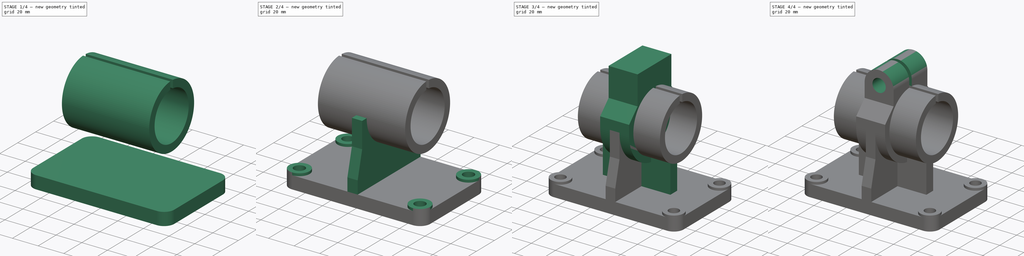
[diagram: build sequence overview — one tinted view per stage of 4, left to right]
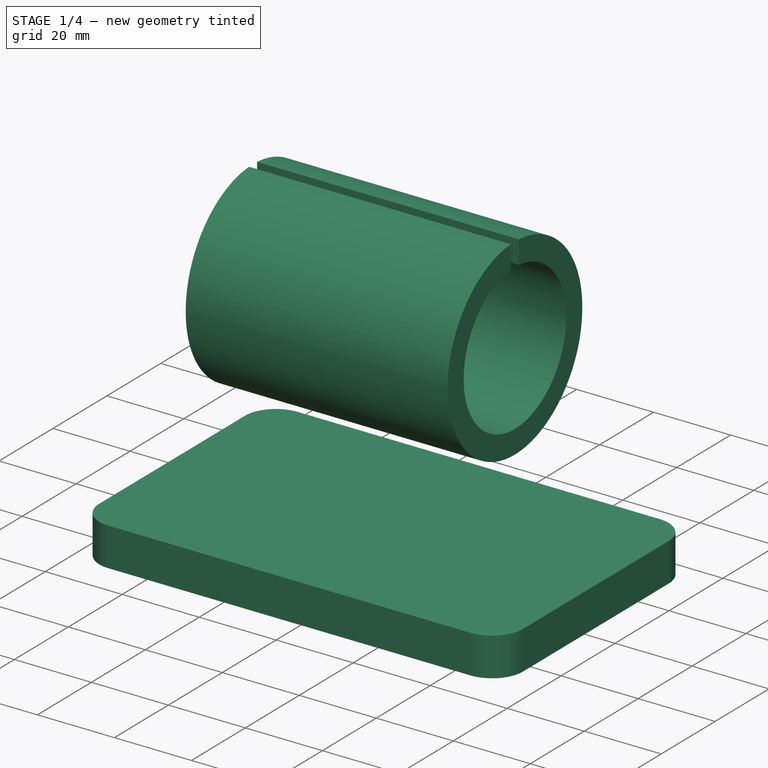
[diagram: stage 1 of 4 — iso view after this stage's code; geometry added in this stage tinted green]
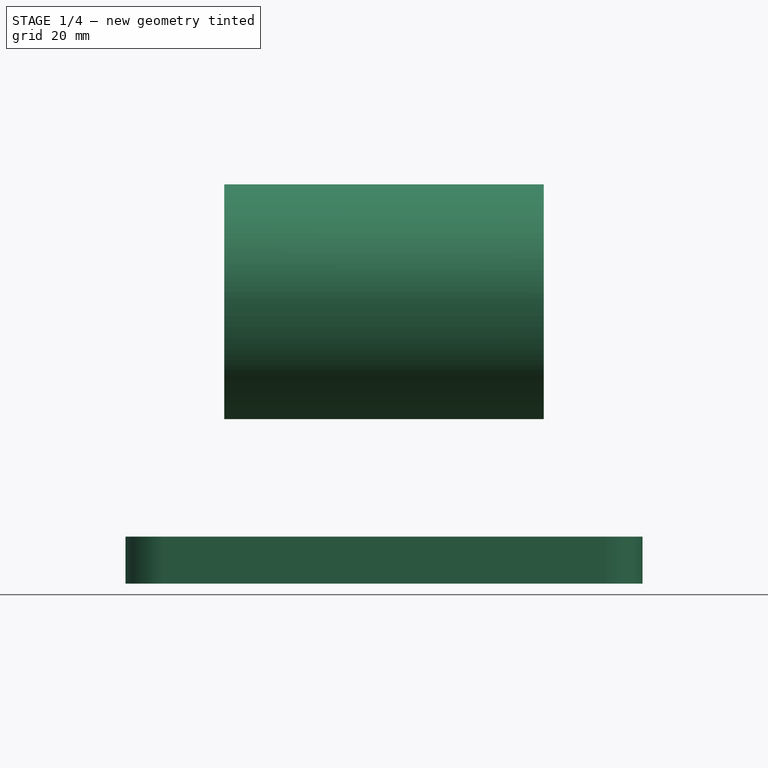
[diagram: stage 1 of 4 — front view after this stage's code; geometry added in this stage tinted green]
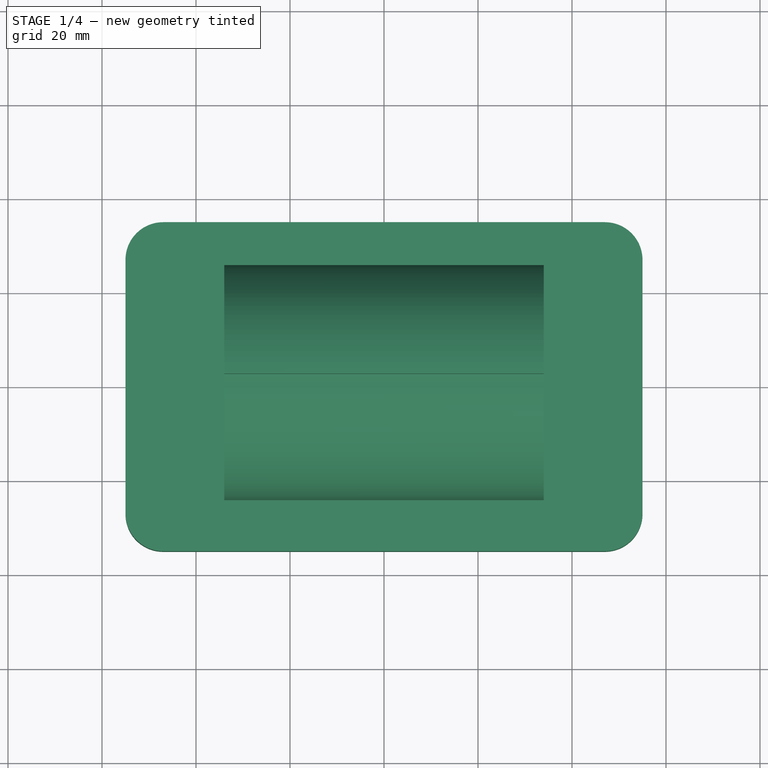
[diagram: stage 1 of 4 — top view after this stage's code; geometry added in this stage tinted green]
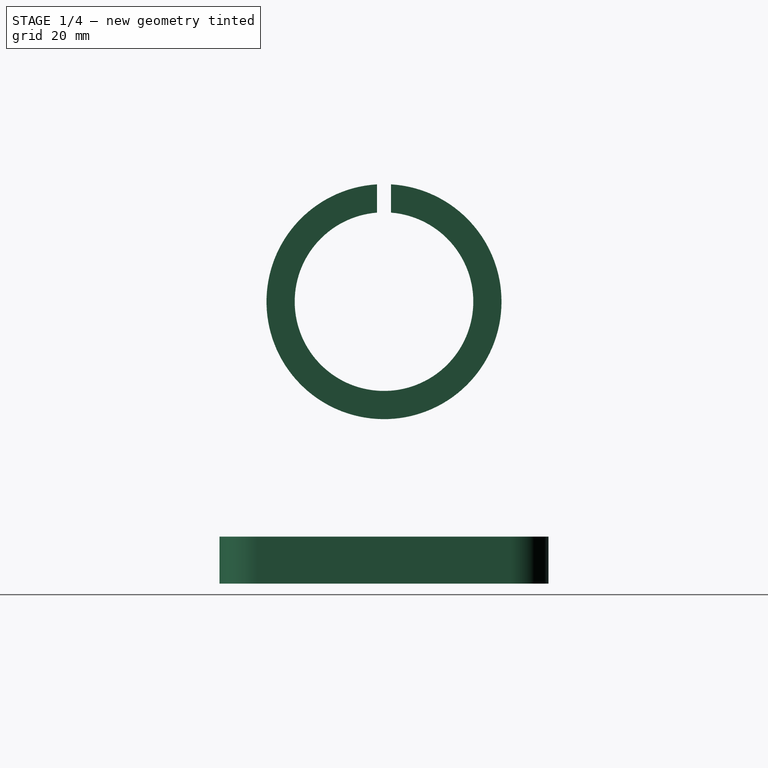
[diagram: stage 1 of 4 — right view after this stage's code; geometry added in this stage tinted green]
FCSTD DOCUMENT  (FreeCAD 1.0R39319 (Git))
Label: Solidworks_tutorial_execurise7
License: All rights reserved
LicenseURL: https://en.wikipedia.org/wiki/All_rights_reserved
objects: Sketcher::SketchObject×11, PartDesign::Pad×6, PartDesign::Pocket×5, PartDesign::Body×2, Image::ImagePlane×1, PartDesign::SubShapeBinder×1
note: 58 computed .brp shape members not serialized (recipe doc carries the construction recipe); baked Part::Feature solids carry a one-line shape summary decoded from their .brp

FEATURE [Image::ImagePlane] Solidworks_tutorial_exericse7  label="Solidworks_tutorial exericse7"
  XSize = 353.439
  YSize = 251.852
FEATURE [Sketcher::SketchObject] Sketch
  ArcFitTolerance = 1e-06
  AttachmentSupport = -> [XY_Plane]
  FullyConstrained = true
  MakeInternals = false
  MapMode = 5
  sketch-geometry (12):
    g0: LineSegment StartX=-55 StartY=27 StartZ=0 EndX=-55 EndY=-27 EndZ=0
    g1: LineSegment StartX=-47 StartY=-35 StartZ=0 EndX=47 EndY=-35 EndZ=0
    g2: LineSegment StartX=55 StartY=-27 StartZ=0 EndX=55 EndY=27 EndZ=0
    g3: LineSegment StartX=47 StartY=35 StartZ=0 EndX=-47 EndY=35 EndZ=0
    g4: ArcOfCircle CenterX=-47 CenterY=27 CenterZ=0 NormalX=0 NormalY=0 NormalZ=1 AngleXU=0 Radius=8 StartAngle=1.5708 EndAngle=3.14159
    g5: GeomPoint [constr] X=-55 Y=35 Z=0
    g6: ArcOfCircle CenterX=-47 CenterY=-27 CenterZ=0 NormalX=0 NormalY=0 NormalZ=1 AngleXU=0 Radius=8 StartAngle=3.14159 EndAngle=4.71239
    g7: GeomPoint [constr] X=-55 Y=-35 Z=0
    g8: ArcOfCircle CenterX=47 CenterY=-27 CenterZ=0 NormalX=0 NormalY=0 NormalZ=1 AngleXU=0 Radius=8 StartAngle=4.71239 EndAngle=6.28319
    g9: GeomPoint [constr] X=55 Y=-35 Z=0
    g10: ArcOfCircle CenterX=47 CenterY=27 CenterZ=0 NormalX=0 NormalY=0 NormalZ=1 AngleXU=0 Radius=8 StartAngle=0 EndAngle=1.5708
    g11: GeomPoint [constr] X=55 Y=35 Z=0
  constraints (26):
    c: Vertical(g0)
    c: Vertical(g2)
    c: Horizontal(g1)
    c: Horizontal(g3)
    c: PointOnObject(g5,g3)
    c: PointOnObject(g5,g0)
    c: Tangent(g3,g4) = -1.5708
    c: Tangent(g0,g4) = -1.5708
    c: PointOnObject(g7,g1)
    c: PointOnObject(g7,g0)
    c: Tangent(g1,g6) = -1.5708
    c: Tangent(g0,g6) = -1.5708
    c: PointOnObject(g9,g1)
    c: PointOnObject(g9,g2)
    c: Tangent(g1,g8) = -1.5708
    c: Tangent(g2,g8) = -1.5708
    c: PointOnObject(g11,g2)
    c: PointOnObject(g11,g3)
    c: Tangent(g2,g10) = -1.5708
    c: Tangent(g3,g10) = -1.5708
    c: Radius(g4) = 8
    c: Equal(g4,g6)
    c: Symmetric(g10,g4,g-2)
    c: Symmetric(g10,g8,g-1)
    c: DistanceX(g4,g10) = 94
    c: Distance(g10,g8) = 54
FEATURE [PartDesign::Pad] Pad
  Direction = (0,0,1)
  Length = 10
  Length2 = 10
  Profile = -> Sketch
  ReferenceAxis = -> Sketch [N_Axis]
  Refine = true
  Suppressed = false
  Type = 0
FEATURE [PartDesign::Body] Body
  AllowCompound = false
  Group = -> [Sketch,Pad,Sketch001,Pad001,Sketch002,Pocket,Sketch003,Pad002,Sketch004,Sketch006,Pad004,Pad005,Sketch007,Pocket001,Sketch008,Pocket002,Sketch009,Pocket003]
  Origin = -> Origin
  Tip = -> Pocket003
FEATURE [PartDesign::SubShapeBinder] Binder
  BindCopyOnChange = 0
  BindMode = 0
  ClaimChildren = false
  Context = -> Body001 [Binder.]
  Fuse = false
  MakeFace = true
  OffsetFill = false
  OffsetIntersection = false
  OffsetJoinType = 0
  OffsetOpenResult = false
  PartialLoad = false
  Refine = true
  Relative = true
  Support = -> [Body[Pocket001.]]
  _Version = 2
FEATURE [Sketcher::SketchObject] Sketch010
  ArcFitTolerance = 1e-06
  AttachmentSupport = -> [YZ_Plane001]
  FullyConstrained = true
  MakeInternals = false
  MapMode = 5
  Placement = pos=(0,0,0) rot=(0.57735,0.57735,0.57735;2.0944rad)
  sketch-geometry (2):
    g0: Circle CenterX=0 CenterY=60 CenterZ=0 NormalX=0 NormalY=0 NormalZ=1 AngleXU=0 Radius=25
    g1: Circle CenterX=0 CenterY=60 CenterZ=0 NormalX=0 NormalY=0 NormalZ=1 AngleXU=0 Radius=19
  constraints (5):
    c: Diameter(g0) = 50
    c: PointOnObject(g0,g-2)
    c: DistanceY(g-1,g0) = 60
    c: Diameter(g1) = 38
    c: Coincident(g1,g0)
FEATURE [PartDesign::Pad] Pad006
  Direction = (1,0,0)
  Length = 68
  Length2 = 10
  Midplane = true
  Placement = pos=(0,0,0) rot=(1,1,1;2.0944rad)
  Profile = -> Sketch010
  ReferenceAxis = -> Sketch010 [N_Axis]
  Refine = true
  Suppressed = false
  Type = 0
FEATURE [Sketcher::SketchObject] Sketch011
  ArcFitTolerance = 1e-06
  AttachmentSupport = -> [YZ_Plane001]
  FullyConstrained = true
  MakeInternals = false
  MapMode = 5
  Placement = pos=(0,0,0) rot=(0.57735,0.57735,0.57735;2.0944rad)
  sketch-geometry (4):
    g0: LineSegment StartX=-1.5 StartY=75 StartZ=0 EndX=1.5 EndY=75 EndZ=0
    g1: LineSegment StartX=1.5 StartY=75 StartZ=0 EndX=1.5 EndY=90 EndZ=0
    g2: LineSegment StartX=1.5 StartY=90 StartZ=0 EndX=-1.5 EndY=90 EndZ=0
    g3: LineSegment StartX=-1.5 StartY=90 StartZ=0 EndX=-1.5 EndY=75 EndZ=0
  constraints (11):
    c: Coincident(g0,g1)
    c: Coincident(g1,g2)
    c: Coincident(g2,g3)
    c: Coincident(g3,g0)
    c: Horizontal(g2)
    c: Vertical(g1)
    c: Vertical(g3)
    c: Symmetric(g0,g0,g-2)
    c: DistanceX(g0,g0) = 3
    c: DistanceY(g1,g1) = 15
    c: DistanceY(g-1,g0) = 75
FEATURE [PartDesign::Pocket] Pocket004
  BaseFeature = -> Pad006
  Direction = (-1,0,0)
  Length = 5
  Length2 = 5
  Midplane = true
  Placement = pos=(0,0,0) rot=(1,1,1;2.0944rad)
  Profile = -> Sketch011
  ReferenceAxis = -> Sketch011 [N_Axis]
  Refine = true
  Suppressed = false
  Type = 1
FEATURE [PartDesign::Body] Body001
  AllowCompound = false
  Group = -> [Binder,Sketch010,Pad006,Sketch011,Pocket004]
  Origin = -> Origin001
  Tip = -> Pocket004
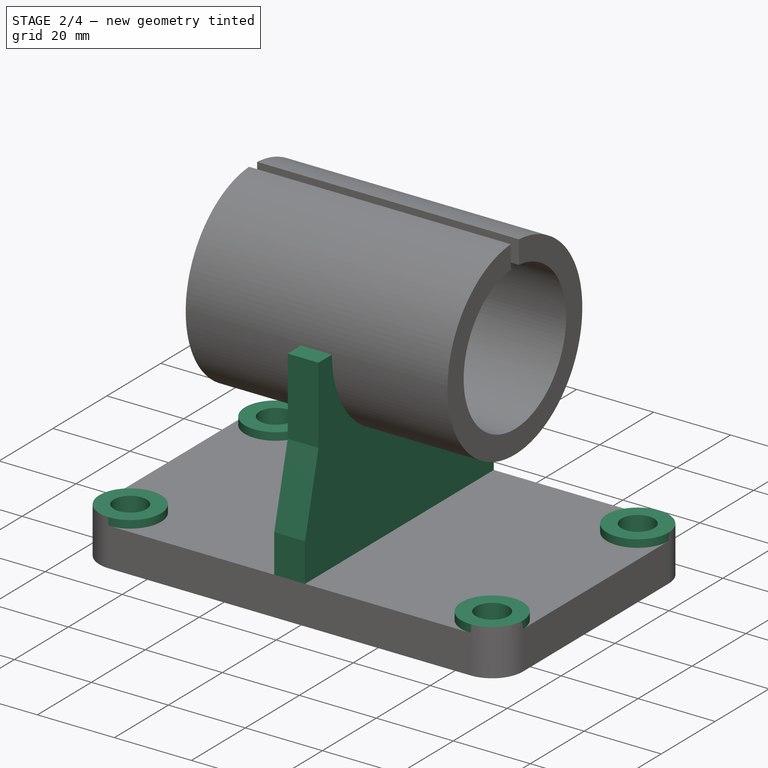
[diagram: stage 2 of 4 — iso view after this stage's code; geometry added in this stage tinted green]
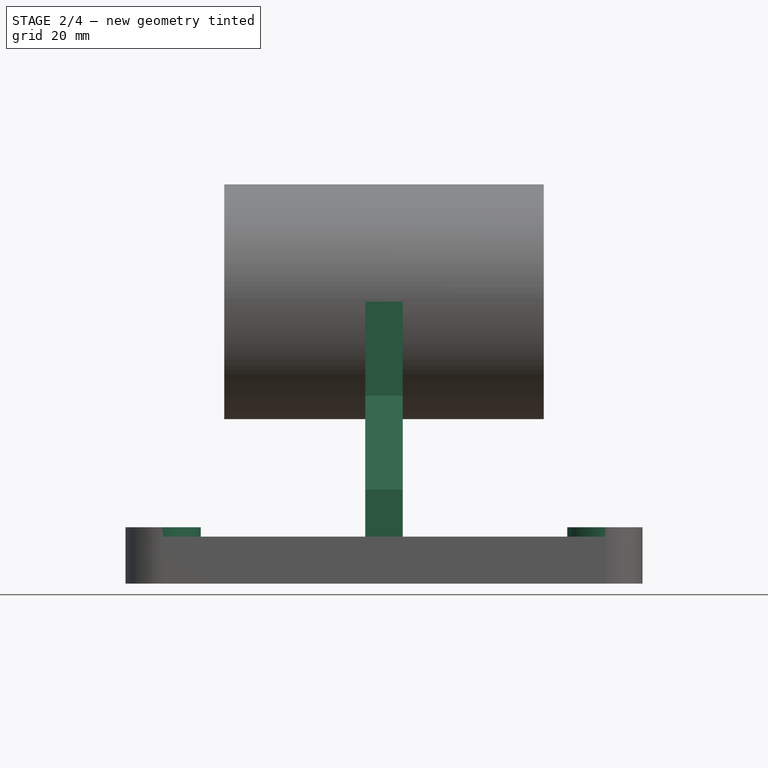
[diagram: stage 2 of 4 — front view after this stage's code; geometry added in this stage tinted green]
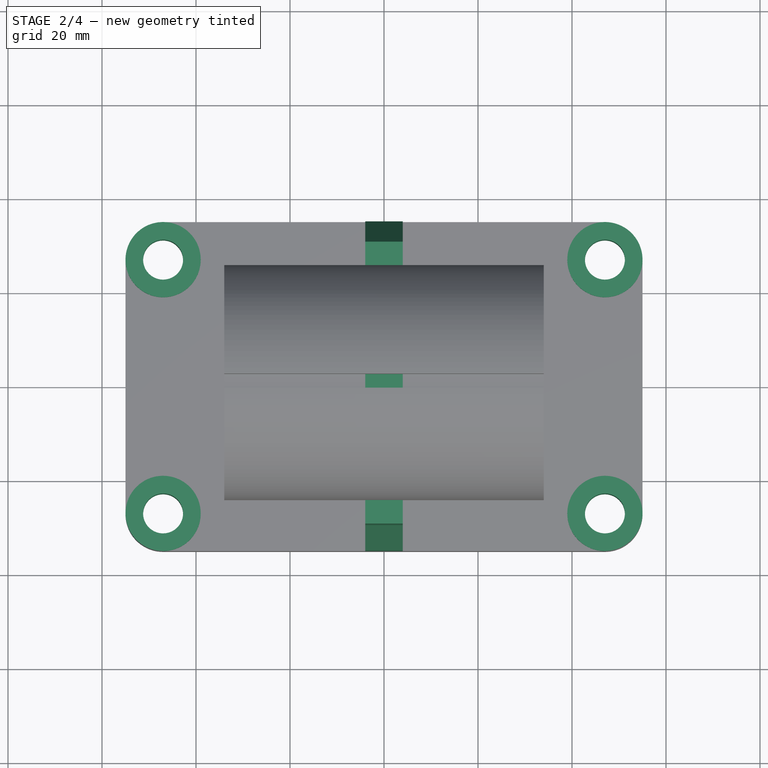
[diagram: stage 2 of 4 — top view after this stage's code; geometry added in this stage tinted green]
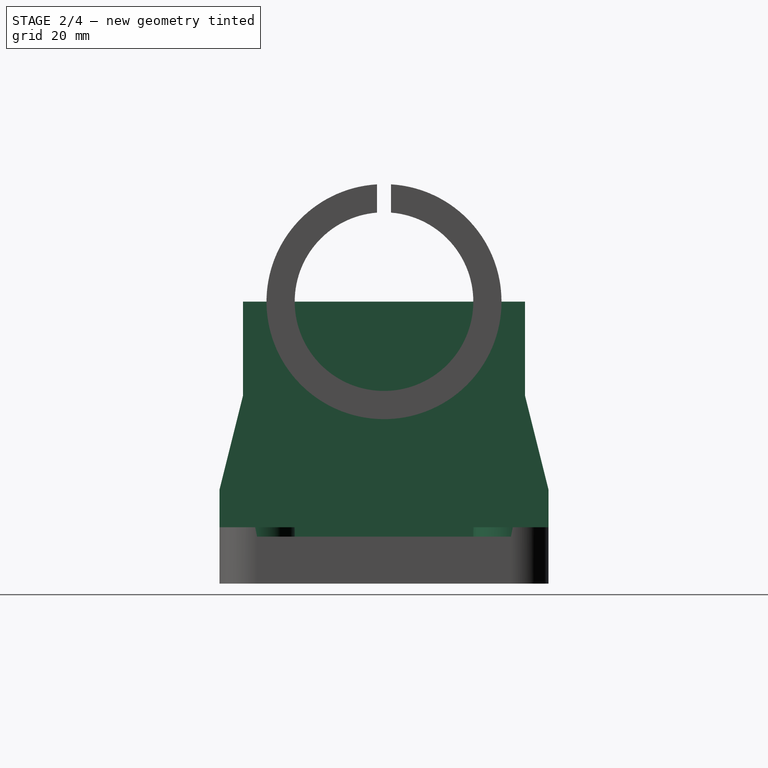
[diagram: stage 2 of 4 — right view after this stage's code; geometry added in this stage tinted green]
FEATURE [Sketcher::SketchObject] Sketch001
  ArcFitTolerance = 1e-06
  AttachmentSupport = -> [XY_Plane]
  ExternalGeometry = -> [Pad]
  FullyConstrained = true
  MakeInternals = false
  MapMode = 5
  sketch-geometry (8):
    g0: Circle CenterX=-47 CenterY=27 CenterZ=0 NormalX=0 NormalY=0 NormalZ=1 AngleXU=0 Radius=8
    g1: Circle CenterX=-47 CenterY=-27 CenterZ=0 NormalX=0 NormalY=0 NormalZ=1 AngleXU=0 Radius=8
    g2: Circle CenterX=47 CenterY=-27 CenterZ=0 NormalX=0 NormalY=0 NormalZ=1 AngleXU=0 Radius=8
    g3: Circle CenterX=47 CenterY=27 CenterZ=0 NormalX=0 NormalY=0 NormalZ=1 AngleXU=0 Radius=8
    g4: Circle CenterX=-47 CenterY=27 CenterZ=0 NormalX=0 NormalY=0 NormalZ=1 AngleXU=0 Radius=4.25
    g5: Circle CenterX=-47 CenterY=-27 CenterZ=0 NormalX=0 NormalY=0 NormalZ=1 AngleXU=0 Radius=4.25
    g6: Circle CenterX=47 CenterY=-27 CenterZ=0 NormalX=0 NormalY=0 NormalZ=1 AngleXU=0 Radius=4.25
    g7: Circle CenterX=47 CenterY=27 CenterZ=0 NormalX=0 NormalY=0 NormalZ=1 AngleXU=0 Radius=4.25
  constraints (16):
    c: Coincident(g0,g-6)
    c: Equal(g0,g-6)
    c: Coincident(g1,g-3)
    c: PointOnObject(g-3,g1)
    c: Coincident(g2,g-4)
    c: PointOnObject(g-4,g2)
    c: Coincident(g3,g-5)
    c: PointOnObject(g-5,g3)
    c: Diameter(g4) = 8.5
    c: Coincident(g4,g0)
    c: Diameter(g5) = 8.5
    c: Coincident(g5,g1)
    c: Diameter(g6) = 8.5
    c: Coincident(g6,g2)
    c: Diameter(g7) = 8.5
    c: Coincident(g7,g3)
FEATURE [PartDesign::Pad] Pad001
  BaseFeature = -> Pad
  Direction = (0,0,1)
  Length = 12
  Length2 = 10
  Profile = -> Sketch001
  ReferenceAxis = -> Sketch001 [N_Axis]
  Refine = true
  Suppressed = false
  Type = 0
FEATURE [Sketcher::SketchObject] Sketch002
  ArcFitTolerance = 1e-06
  AttachmentSupport = -> [XY_Plane]
  ExternalGeometry = -> [Pad001]
  FullyConstrained = true
  MakeInternals = false
  MapMode = 5
  sketch-geometry (4):
    g0: Circle CenterX=-47 CenterY=27 CenterZ=0 NormalX=0 NormalY=0 NormalZ=1 AngleXU=0 Radius=4.25
    g1: Circle CenterX=-47 CenterY=-27 CenterZ=0 NormalX=0 NormalY=0 NormalZ=1 AngleXU=0 Radius=4.25
    g2: Circle CenterX=47 CenterY=27 CenterZ=0 NormalX=0 NormalY=0 NormalZ=1 AngleXU=0 Radius=4.25
    g3: Circle CenterX=47 CenterY=-27 CenterZ=0 NormalX=0 NormalY=0 NormalZ=1 AngleXU=0 Radius=4.25
  constraints (8):
    c: Coincident(g0,g-3)
    c: Equal(g0,g-3)
    c: Coincident(g1,g-4)
    c: Equal(g1,g-4)
    c: Coincident(g2,g-5)
    c: Equal(g2,g-5)
    c: Coincident(g3,g-6)
    c: Equal(g3,g-6)
FEATURE [PartDesign::Pocket] Pocket
  BaseFeature = -> Pad001
  Direction = (0,0,-1)
  Length = 5
  Length2 = 5
  Midplane = true
  Profile = -> Sketch002
  ReferenceAxis = -> Sketch002 [N_Axis]
  Refine = true
  Suppressed = false
  Type = 1
FEATURE [Sketcher::SketchObject] Sketch003
  ArcFitTolerance = 1e-06
  AttachmentSupport = -> [YZ_Plane]
  ExternalGeometry = -> [Pocket]
  FullyConstrained = true
  MakeInternals = false
  MapMode = 5
  Placement = pos=(0,0,0) rot=(0.57735,0.57735,0.57735;2.0944rad)
  sketch-geometry (8):
    g0: LineSegment StartX=35 StartY=0 StartZ=0 EndX=-35 EndY=0 EndZ=0
    g1: LineSegment StartX=-35 StartY=0 StartZ=0 EndX=-35 EndY=20 EndZ=0
    g2: LineSegment StartX=-35 StartY=20 StartZ=0 EndX=-30 EndY=40 EndZ=0
    g3: LineSegment StartX=-30 StartY=40 StartZ=0 EndX=-30 EndY=60 EndZ=0
    g4: LineSegment StartX=-30 StartY=60 StartZ=0 EndX=30 EndY=60 EndZ=0
    g5: LineSegment StartX=30 StartY=60 StartZ=0 EndX=30 EndY=40 EndZ=0
    g6: LineSegment StartX=30 StartY=40 StartZ=0 EndX=35 EndY=20 EndZ=0
    g7: LineSegment StartX=35 StartY=20 StartZ=0 EndX=35 EndY=0 EndZ=0
  constraints (21):
    c: Coincident(g-5,g0)
    c: Coincident(g0,g-4)
    c: Coincident(g0,g1)
    c: Vertical(g1)
    c: Coincident(g1,g2)
    c: Coincident(g2,g3)
    c: Vertical(g3)
    c: Coincident(g3,g4)
    c: Coincident(g4,g5)
    c: Coincident(g5,g6)
    c: Coincident(g6,g7)
    c: Coincident(g7,g0)
    c: Vertical(g7)
    c: Vertical(g5)
    c: Equal(g5,g3)
    c: Equal(g7,g1)
    c: Symmetric(g4,g3,g-2)
    c: DistanceY(g-1,g4) = 60
    c: DistanceY(g6,g6) = 20
    c: DistanceY(g5,g5) = 20
    c: DistanceX(g4,g4) = 60
FEATURE [PartDesign::Pad] Pad002
  BaseFeature = -> Pocket
  Direction = (1,0,0)
  Length = 8
  Length2 = 10
  Midplane = true
  Profile = -> Sketch003
  ReferenceAxis = -> Sketch003 [N_Axis]
  Refine = true
  Suppressed = false
  Type = 0
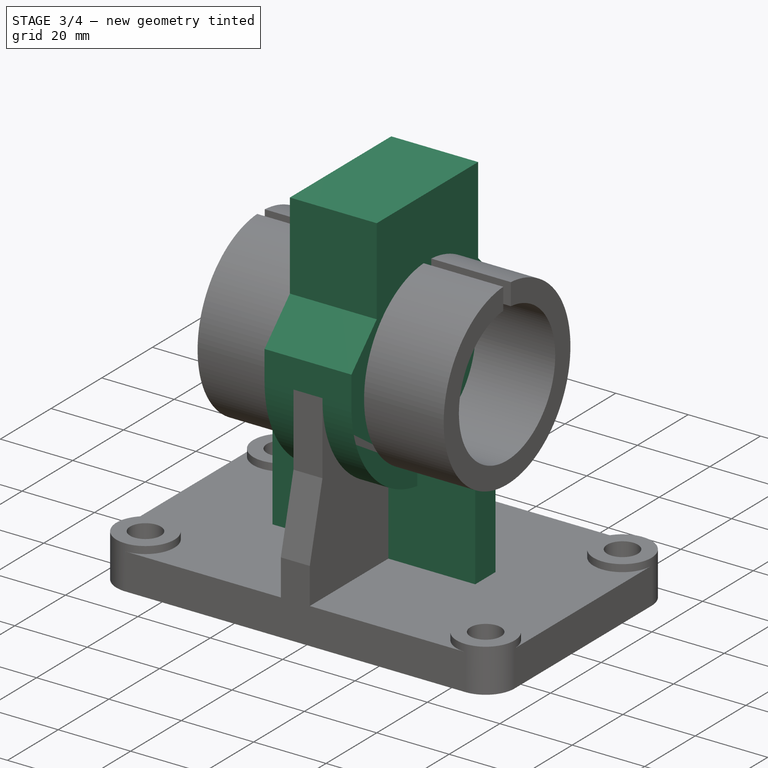
[diagram: stage 3 of 4 — iso view after this stage's code; geometry added in this stage tinted green]
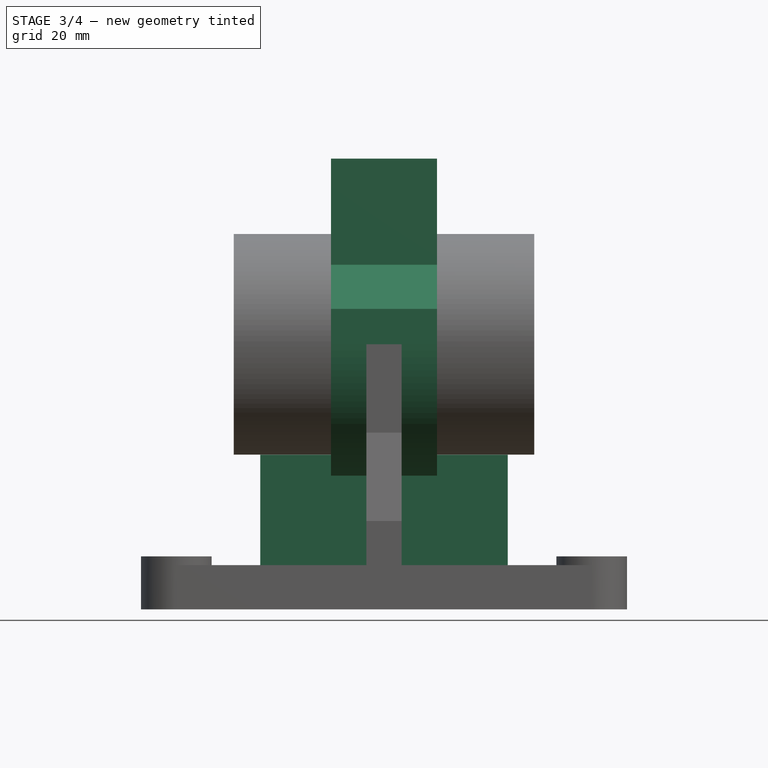
[diagram: stage 3 of 4 — front view after this stage's code; geometry added in this stage tinted green]
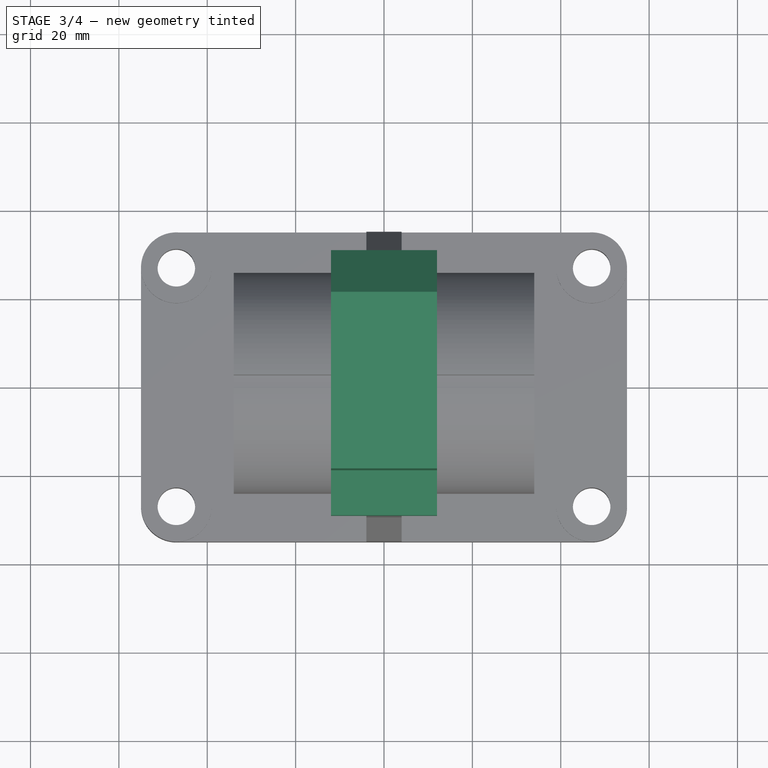
[diagram: stage 3 of 4 — top view after this stage's code; geometry added in this stage tinted green]
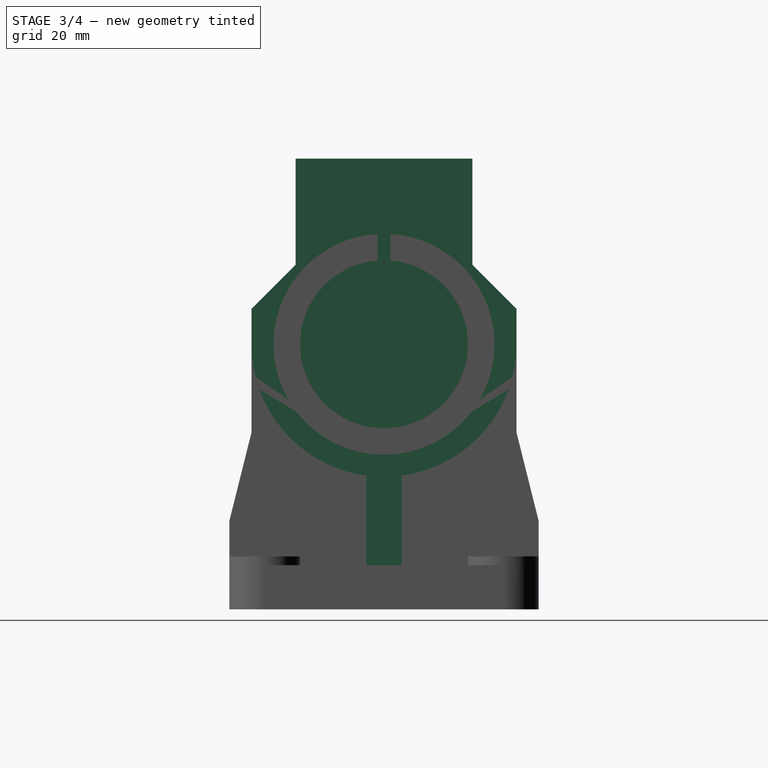
[diagram: stage 3 of 4 — right view after this stage's code; geometry added in this stage tinted green]
FEATURE [Sketcher::SketchObject] Sketch006
  ArcFitTolerance = 1e-06
  AttachmentSupport = -> [XZ_Plane]
  FullyConstrained = true
  MakeInternals = false
  MapMode = 5
  Placement = pos=(0,0,0) rot=(1,0,0;1.5708rad)
  sketch-geometry (4):
    g0: LineSegment StartX=28 StartY=0 StartZ=0 EndX=28 EndY=35 EndZ=0
    g1: LineSegment StartX=28 StartY=35 StartZ=0 EndX=-28 EndY=35 EndZ=0
    g2: LineSegment StartX=-28 StartY=35 StartZ=0 EndX=-28 EndY=0 EndZ=0
    g3: LineSegment StartX=-28 StartY=0 StartZ=0 EndX=28 EndY=0 EndZ=0
  constraints (11):
    c: Coincident(g0,g1)
    c: Coincident(g1,g2)
    c: Coincident(g2,g3)
    c: Coincident(g3,g0)
    c: Vertical(g0)
    c: Vertical(g2)
    c: Horizontal(g1)
    c: PointOnObject(g0,g-1)
    c: Symmetric(g0,g2,g-2)
    c: DistanceY(g0,g0) = 35
    c: Distance(g1,g1) = 56
FEATURE [PartDesign::Pad] Pad004
  BaseFeature = -> Pad002
  Direction = (0,-1,2e-16)
  Length = 8
  Length2 = 10
  Midplane = true
  Profile = -> Sketch006
  ReferenceAxis = -> Sketch006 [N_Axis]
  Refine = true
  Suppressed = false
  Type = 0
FEATURE [Sketcher::SketchObject] Sketch004
  ArcFitTolerance = 1e-06
  AttachmentSupport = -> [YZ_Plane]
  ExternalGeometry = -> [Pad004]
  FullyConstrained = true
  MakeInternals = false
  MapMode = 5
  Placement = pos=(0,0,0) rot=(0.57735,0.57735,0.57735;2.0944rad)
  sketch-geometry (8):
    g0: ArcOfCircle CenterX=7e-16 CenterY=60 CenterZ=0 NormalX=0 NormalY=0 NormalZ=1 AngleXU=0 Radius=30 StartAngle=3.14159 EndAngle=6.28319
    g1: LineSegment StartX=-30 StartY=60 StartZ=0 EndX=-30 EndY=68 EndZ=0
    g2: LineSegment StartX=-30 StartY=68 StartZ=0 EndX=-20 EndY=78 EndZ=0
    g3: LineSegment StartX=-20 StartY=78 StartZ=0 EndX=-20 EndY=102 EndZ=0
    g4: LineSegment StartX=-20 StartY=102 StartZ=0 EndX=20 EndY=102 EndZ=0
    g5: LineSegment StartX=20 StartY=102 StartZ=0 EndX=20 EndY=78 EndZ=0
    g6: LineSegment StartX=20 StartY=78 StartZ=0 EndX=30 EndY=68 EndZ=0
    g7: LineSegment StartX=30 StartY=68 StartZ=0 EndX=30 EndY=60 EndZ=0
  constraints (20):
    c: Coincident(g0,g-3)
    c: Coincident(g0,g-4)
    c: Tangent(g0,g1) = 1.5708
    c: Coincident(g1,g2)
    c: Coincident(g2,g3)
    c: Vertical(g3)
    c: Coincident(g3,g4)
    c: Coincident(g4,g5)
    c: Coincident(g5,g6)
    c: Coincident(g6,g7)
    c: Coincident(g7,g0)
    c: Vertical(g7)
    c: Symmetric(g4,g3,g-2)
    c: Symmetric(g5,g2,g-2)
    c: DistanceY(g1,g1) = 8
    c: Equal(g1,g7)
    c: Equal(g2,g6)
    c: DistanceX(g4,g4) = 40
    c: Distance(g5,g5) = 24
    c: DistanceY(g0,g2) = 18
FEATURE [PartDesign::Pad] Pad005
  BaseFeature = -> Pad004
  Direction = (1,0,0)
  Length = 24
  Length2 = 10
  Midplane = true
  Profile = -> Sketch004
  ReferenceAxis = -> Sketch004 [N_Axis]
  Refine = true
  Suppressed = false
  Type = 0
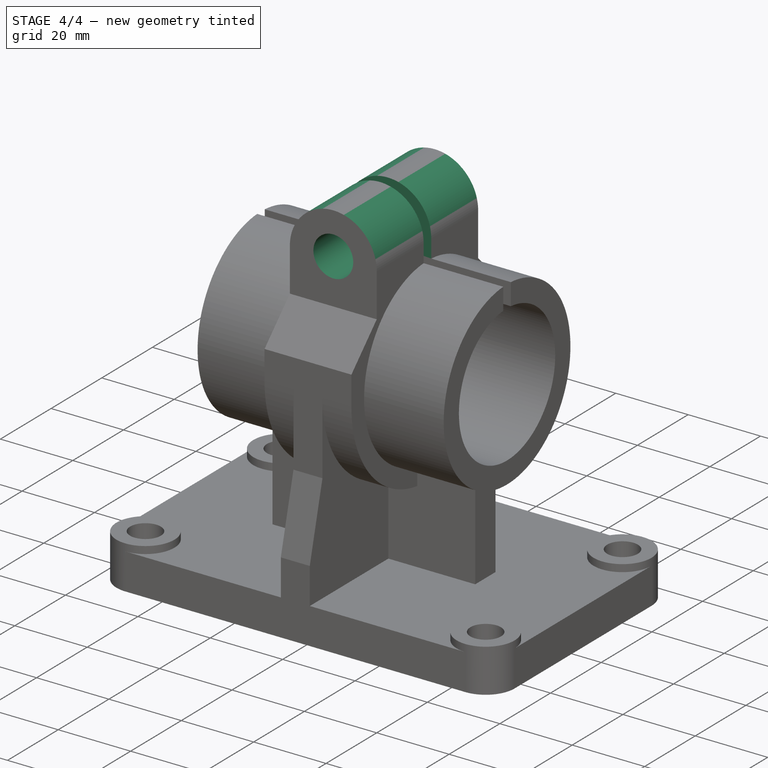
[diagram: stage 4 of 4 — iso view after this stage's code; geometry added in this stage tinted green]
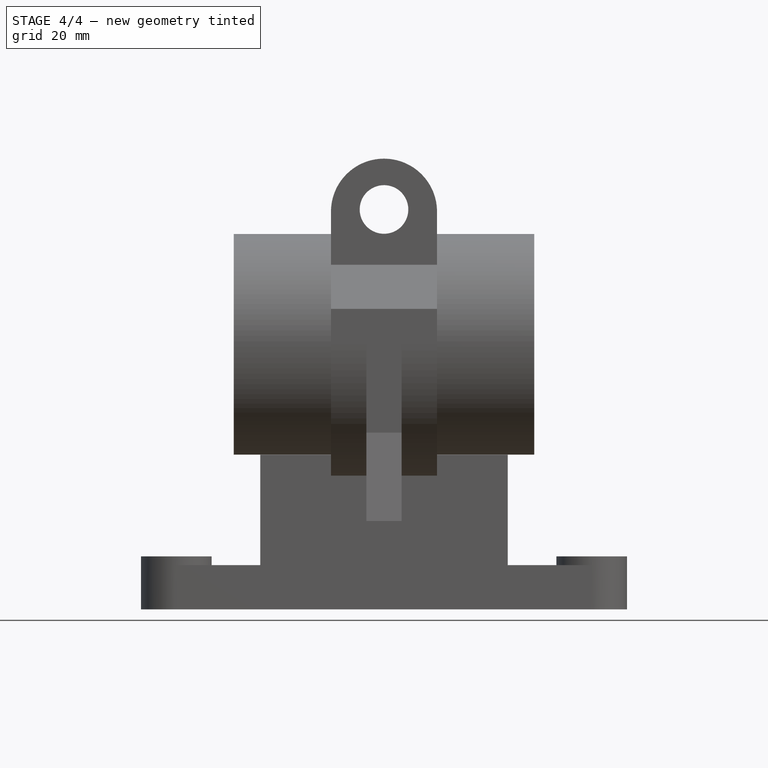
[diagram: stage 4 of 4 — front view after this stage's code; geometry added in this stage tinted green]
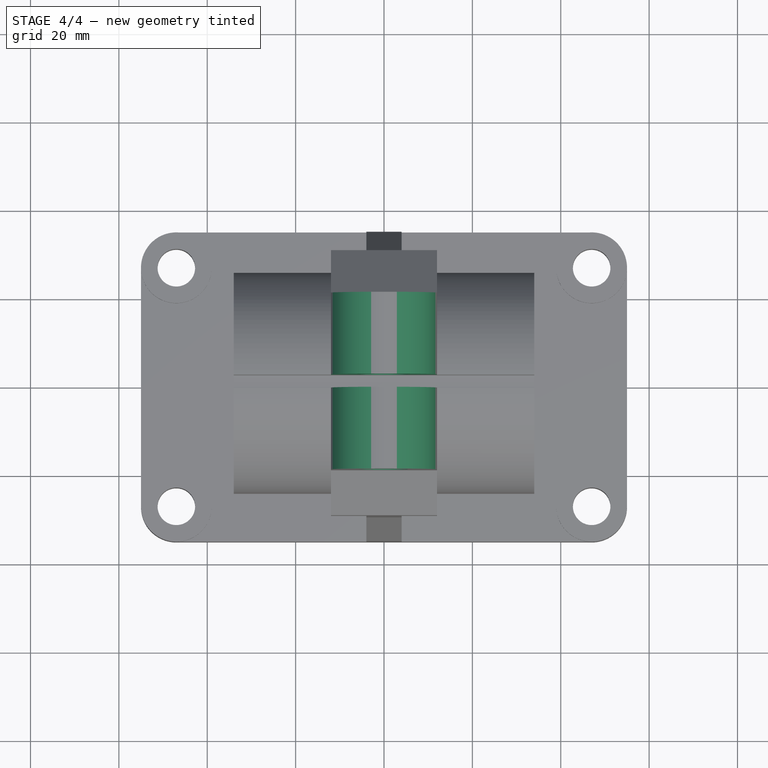
[diagram: stage 4 of 4 — top view after this stage's code; geometry added in this stage tinted green]
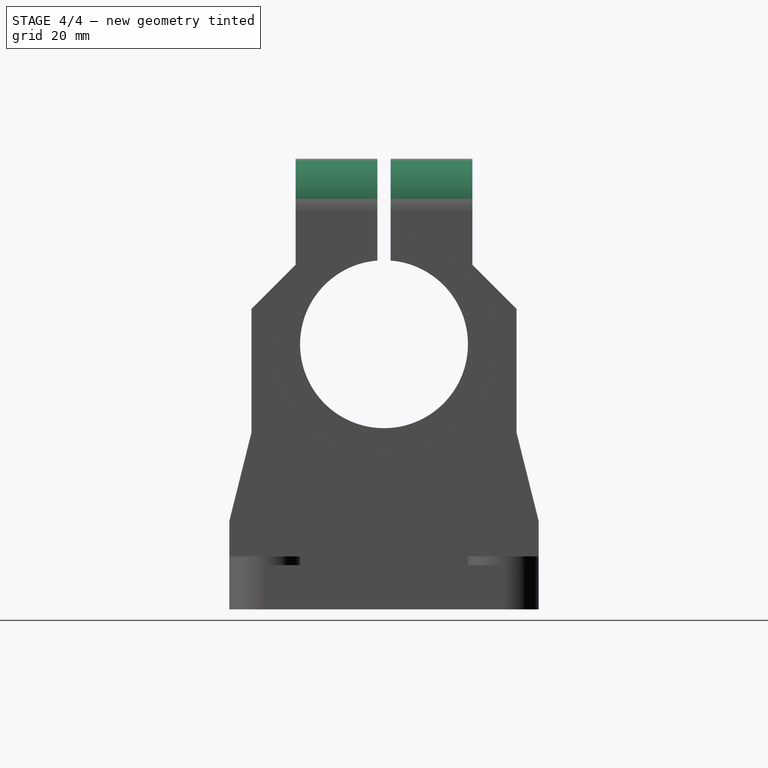
[diagram: stage 4 of 4 — right view after this stage's code; geometry added in this stage tinted green]
FEATURE [Sketcher::SketchObject] Sketch007
  ArcFitTolerance = 1e-06
  AttachmentSupport = -> [YZ_Plane]
  ExternalGeometry = -> [Pad005]
  FullyConstrained = true
  MakeInternals = false
  MapMode = 5
  Placement = pos=(0,0,0) rot=(0.57735,0.57735,0.57735;2.0944rad)
  sketch-geometry (4):
    g0: ArcOfCircle CenterX=7e-16 CenterY=60 CenterZ=0 NormalX=0 NormalY=0 NormalZ=1 AngleXU=0 Radius=25 StartAngle=1.63083 EndAngle=7.79395
    g1: LineSegment StartX=1.5 StartY=84.955 StartZ=0 EndX=1.5 EndY=109.955 EndZ=0
    g2: LineSegment StartX=1.5 StartY=109.955 StartZ=0 EndX=-1.5 EndY=109.955 EndZ=0
    g3: LineSegment StartX=-1.5 StartY=109.955 StartZ=0 EndX=-1.5 EndY=84.955 EndZ=0
  constraints (11):
    c: Diameter(g0) = 50
    c: Coincident(g0,g-3)
    c: Coincident(g1,g2)
    c: Coincident(g2,g3)
    c: Vertical(g1)
    c: Vertical(g3)
    c: Distance(g1,g3) = 3
    c: Symmetric(g1,g2,g-2)
    c: Coincident(g0,g3)
    c: Coincident(g0,g1)
    c: DistanceY(g1,g1) = 25
FEATURE [PartDesign::Pocket] Pocket001
  BaseFeature = -> Pad005
  Direction = (-1,0,0)
  Length = 5
  Length2 = 5
  Midplane = true
  Profile = -> Sketch007
  ReferenceAxis = -> Sketch007 [N_Axis]
  Refine = true
  Suppressed = false
  Type = 1
FEATURE [Sketcher::SketchObject] Sketch008
  ArcFitTolerance = 1e-06
  AttachmentSupport = -> [XZ_Plane]
  ExternalGeometry = -> [Pocket001]
  FullyConstrained = true
  MakeInternals = false
  MapMode = 5
  Placement = pos=(0,0,0) rot=(1,0,0;1.5708rad)
  sketch-geometry (1):
    g0: Circle CenterX=0 CenterY=90.5 CenterZ=0 NormalX=0 NormalY=0 NormalZ=1 AngleXU=0 Radius=5.5
  constraints (3):
    c: Diameter(g0) = 11
    c: PointOnObject(g0,g-2)
    c: DistanceY(g-3,g0) = 30.5
FEATURE [PartDesign::Pocket] Pocket002
  BaseFeature = -> Pocket001
  Direction = (0,1,-2e-16)
  Length = 5
  Length2 = 5
  Midplane = true
  Profile = -> Sketch008
  ReferenceAxis = -> Sketch008 [N_Axis]
  Refine = true
  Suppressed = false
  Type = 1
FEATURE [Sketcher::SketchObject] Sketch009
  ArcFitTolerance = 1e-06
  AttachmentSupport = -> [XZ_Plane]
  ExternalGeometry = -> [Pocket002]
  FullyConstrained = false
  MakeInternals = false
  MapMode = 5
  Placement = pos=(0,0,0) rot=(1,0,0;1.5708rad)
  sketch-geometry (4):
    g0: ArcOfCircle CenterX=7.8839e-12 CenterY=90 CenterZ=0 NormalX=0 NormalY=0 NormalZ=1 AngleXU=0 Radius=12 StartAngle=6.28318 EndAngle=9.42478
    g1: LineSegment StartX=-12 StartY=90 StartZ=0 EndX=-12 EndY=108 EndZ=0
    g2: LineSegment StartX=-12 StartY=108 StartZ=0 EndX=12 EndY=108 EndZ=0
    g3: LineSegment StartX=12 StartY=108 StartZ=0 EndX=12 EndY=90 EndZ=0
  constraints (12):
    c: PointOnObject(g0,g-5)
    c: PointOnObject(g0,g-4)
    c: Radius(g0) = 12
    c: Tangent(g0,g-3)
    c: Coincident(g0,g1)
    c: Coincident(g1,g2)
    c: Horizontal(g2)
    c: Coincident(g2,g3)
    c: Coincident(g3,g0)
    c: Vertical(g3)
    c: Vertical(g1)
    c: Distance(g0,g2) = 18
FEATURE [PartDesign::Pocket] Pocket003
  BaseFeature = -> Pocket002
  Direction = (0,1,-2e-16)
  Length = 5
  Length2 = 5
  Midplane = true
  Profile = -> Sketch009
  ReferenceAxis = -> Sketch009 [N_Axis]
  Refine = true
  Suppressed = false
  Type = 1
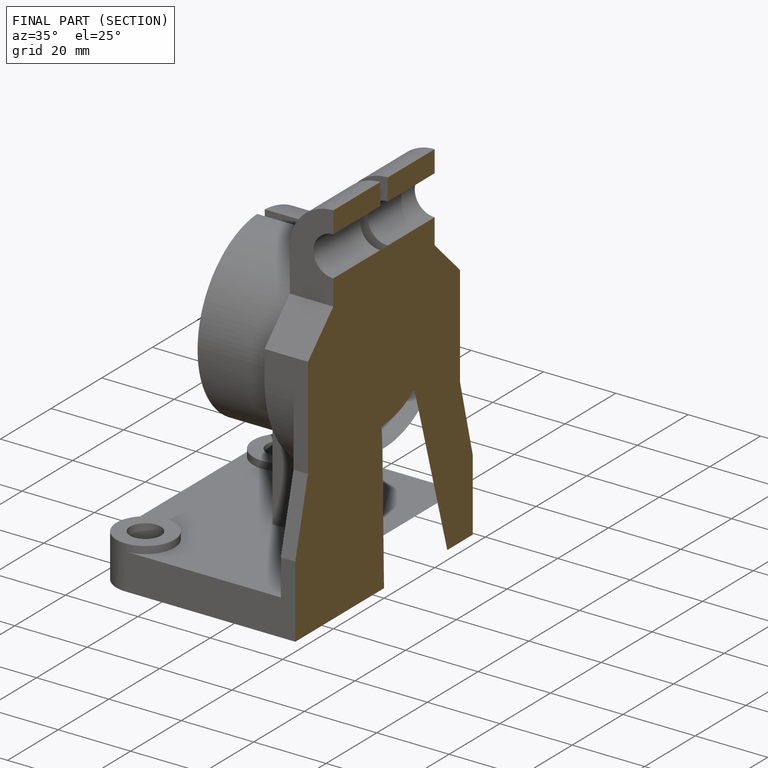
[diagram: finished part — half-section view (interior)]
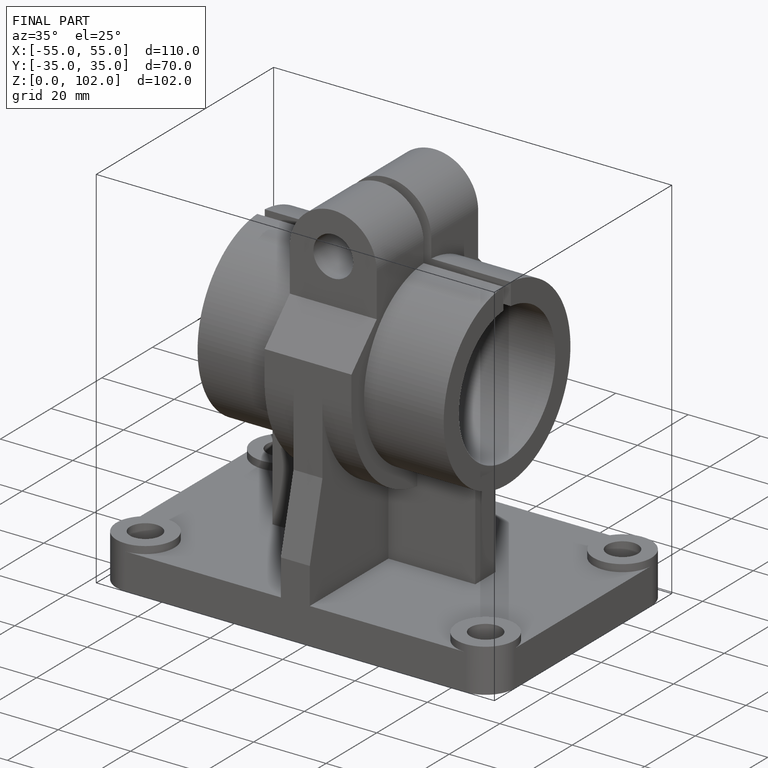
[diagram: finished part — iso view with bounding-box wireframe]
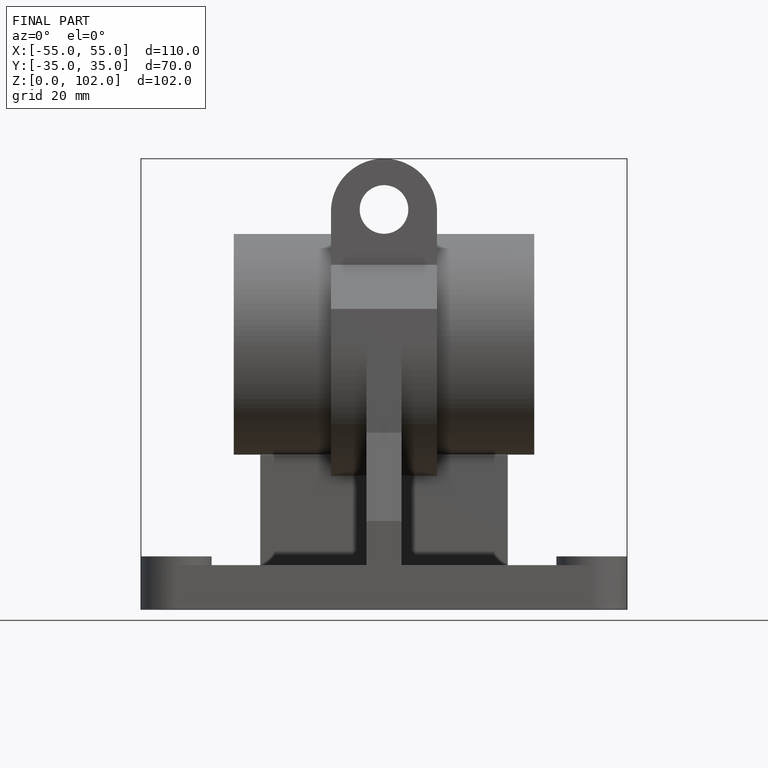
[diagram: finished part — front view with bounding-box wireframe]
